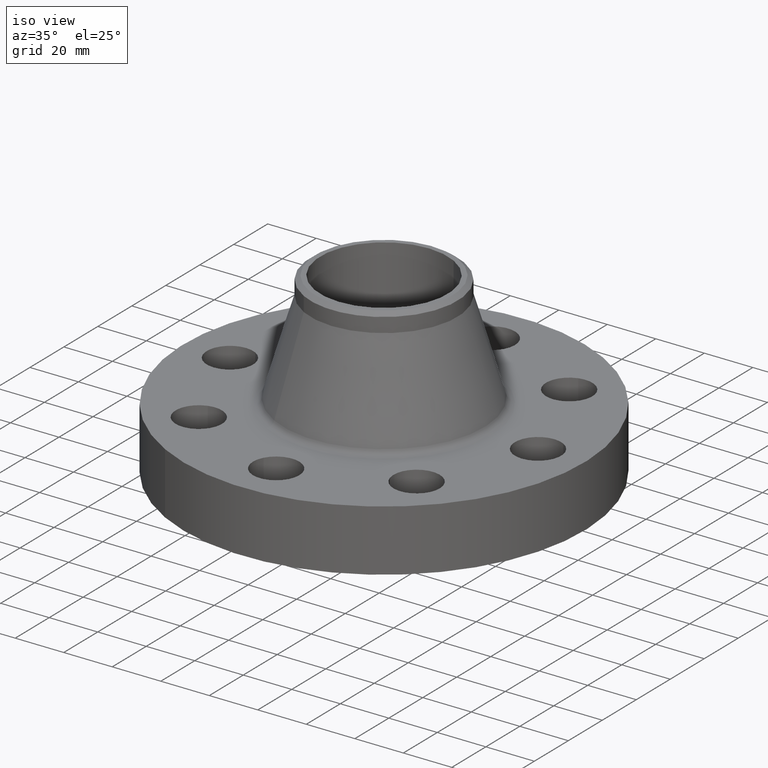
[diagram: clean part render]
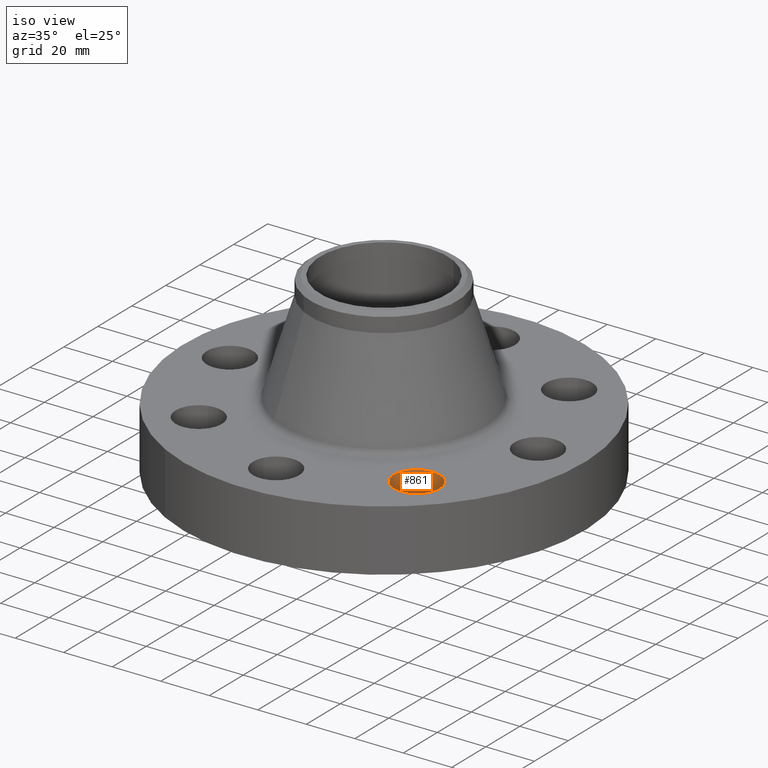
[diagram: same view with one face highlighted and labeled with its STEP entity id]
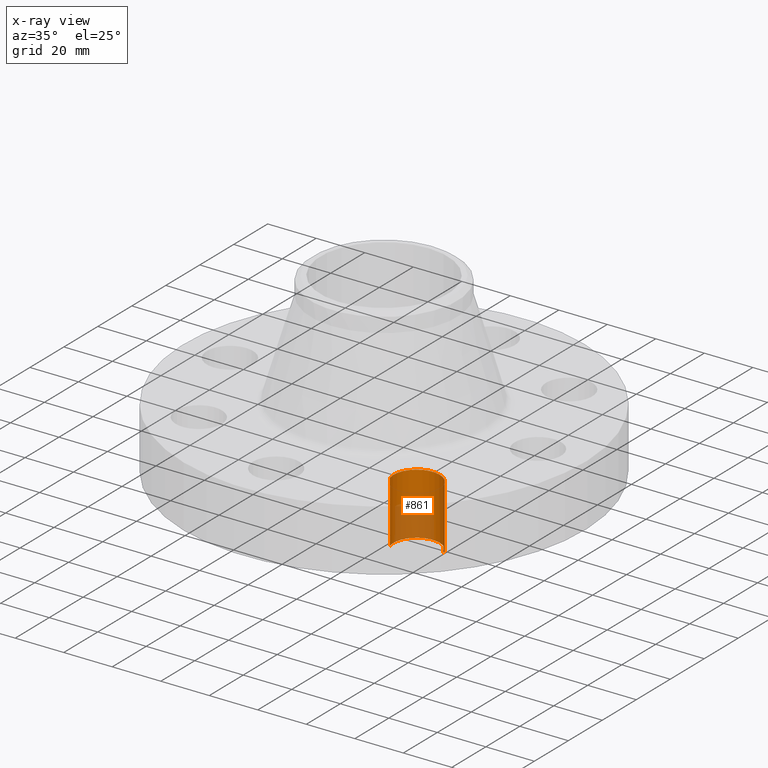
[diagram: x-ray of the same camera — body ghosted, the highlighted face saturated]
A machine part, iso view. The second image highlights one B-rep face of the part: STEP entity #861.
The next image is the same camera in x-ray: the body ghosted, the highlighted face saturated — about 37% of this face is hidden behind the body in this view.
In plain terms, the highlighted cylindrical surface (edge-blend (fillet) strip) has radius 9.525 mm, axis along (-0, 0, -1).
Its self-contained STEP definition (entity closure, byte-faithful):
#676=AXIS2_PLACEMENT_3D('Circle Axis2P3D',#674,#675,$) ;
#690=AXIS2_PLACEMENT_3D('Circle Axis2P3D',#688,#689,$) ;
#821=AXIS2_PLACEMENT_3D('Cylinder Axis2P3D',#818,#819,#820) ;
#851=AXIS2_PLACEMENT_3D('Circle Axis2P3D',#849,#850,$) ;
#525=CARTESIAN_POINT('Vertex',(1.50260191003,-1.50260191003,0.)) ;
#674=CARTESIAN_POINT('Axis2P3D Location',(1.76776695297,-1.76776695297,0.)) ;
#678=CARTESIAN_POINT('Vertex',(1.40793584173,-1.87334427715,-1.39870617276E-016)) ;
#685=CARTESIAN_POINT('Vertex',(2.12759806422,-1.66218962879,0.)) ;
#688=CARTESIAN_POINT('Axis2P3D Location',(1.76776695297,-1.76776695297,0.)) ;
#818=CARTESIAN_POINT('Axis2P3D Location',(1.76776695297,-1.76776695297,0.99606299213)) ;
#823=CARTESIAN_POINT('Line Origine',(2.12759806422,-1.66218962879,0.500000000002)) ;
#827=CARTESIAN_POINT('Vertex',(2.12759806422,-1.66218962879,1.)) ;
#830=CARTESIAN_POINT('Line Origine',(1.40793584173,-1.87334427715,0.500000000002)) ;
#834=CARTESIAN_POINT('Vertex',(1.40793584173,-1.87334427715,1.)) ;
#849=CARTESIAN_POINT('Axis2P3D Location',(1.76776695297,-1.76776695297,1.)) ;
#675=DIRECTION('Axis2P3D Direction',(0.,0.,-0.0393700787402)) ;
#689=DIRECTION('Axis2P3D Direction',(0.,0.,-0.0393700787402)) ;
#819=DIRECTION('Axis2P3D Direction',(-0.,0.,-0.0393700787402)) ;
#820=DIRECTION('Axis2P3D XDirection',(-0.0377775444876,-0.0110842335096,0.)) ;
#824=DIRECTION('Vector Direction',(0.,0.,-0.0393700787402)) ;
#831=DIRECTION('Vector Direction',(0.,0.,-0.0393700787402)) ;
#850=DIRECTION('Axis2P3D Direction',(-0.,0.,-0.0393700787402)) ;
#825=VECTOR('Line Direction',#824,0.0393700787402) ;
#832=VECTOR('Line Direction',#831,0.0393700787402) ;
#855=ORIENTED_EDGE('',*,*,#836,.F.) ;
#856=ORIENTED_EDGE('',*,*,#680,.T.) ;
#857=ORIENTED_EDGE('',*,*,#692,.T.) ;
#858=ORIENTED_EDGE('',*,*,#829,.T.) ;
#859=ORIENTED_EDGE('',*,*,#853,.F.) ;
#861=ADVANCED_FACE('PartBody',(#860),#822,.F.) ;
#677=CIRCLE('generated circle',#676,0.375000000001) ;
#691=CIRCLE('generated circle',#690,0.375000000001) ;
#852=CIRCLE('generated circle',#851,0.375000000001) ;
#822=CYLINDRICAL_SURFACE('generated cylinder',#821,0.375000000001) ;
#680=EDGE_CURVE('',#679,#526,#677,.T.) ;
#692=EDGE_CURVE('',#526,#686,#691,.T.) ;
#829=EDGE_CURVE('',#686,#828,#826,.F.) ;
#836=EDGE_CURVE('',#679,#835,#833,.F.) ;
#853=EDGE_CURVE('',#835,#828,#852,.T.) ;
#854=EDGE_LOOP('',(#855,#856,#857,#858,#859)) ;
#860=FACE_OUTER_BOUND('',#854,.T.) ;
#826=LINE('Line',#823,#825) ;
#833=LINE('Line',#830,#832) ;
#526=VERTEX_POINT('',#525) ;
#679=VERTEX_POINT('',#678) ;
#686=VERTEX_POINT('',#685) ;
#828=VERTEX_POINT('',#827) ;
#835=VERTEX_POINT('',#834) ;